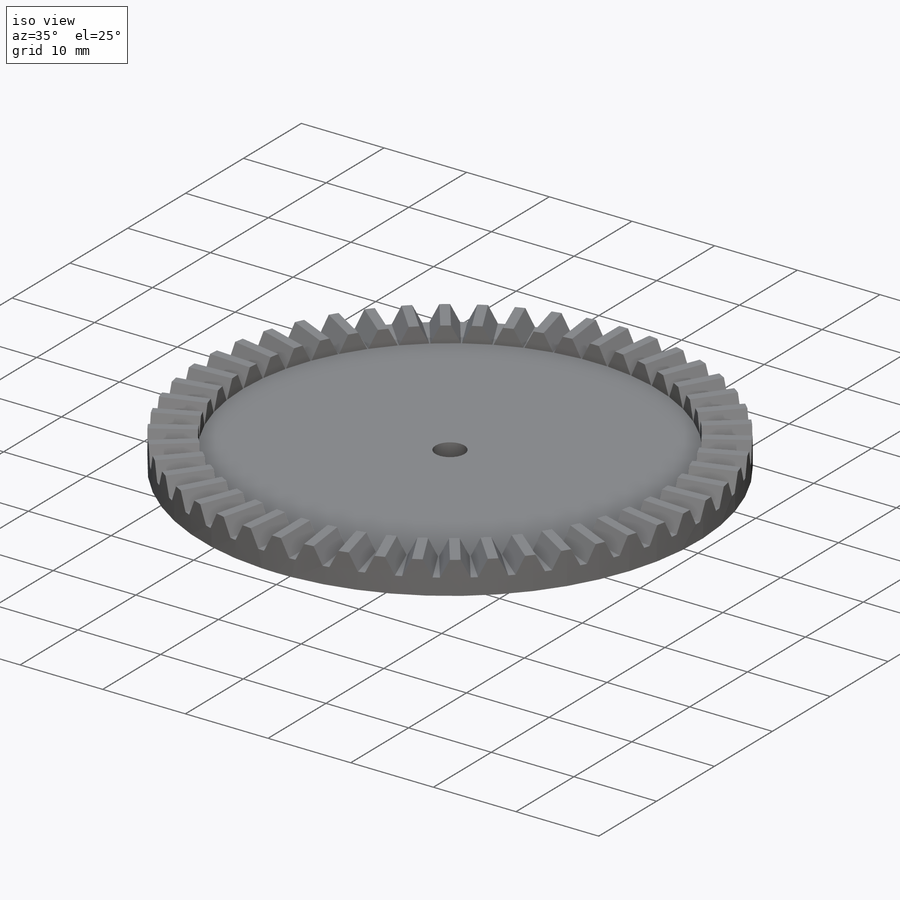
[diagram: iso view]
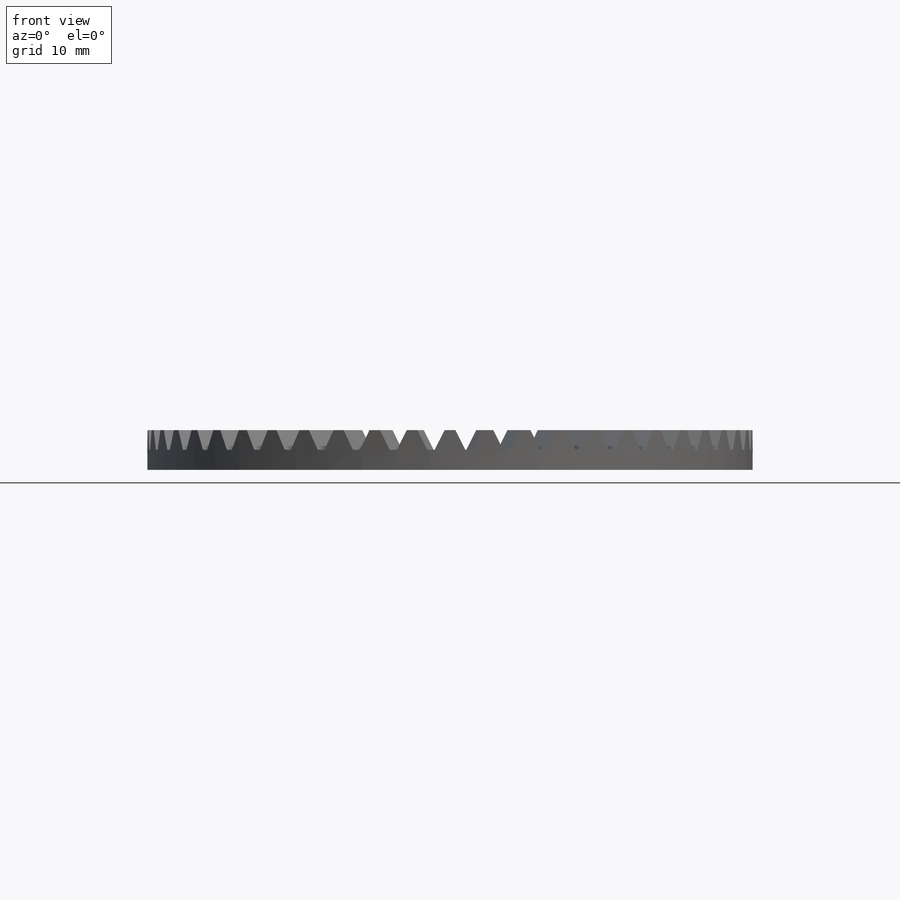
[diagram: front view]
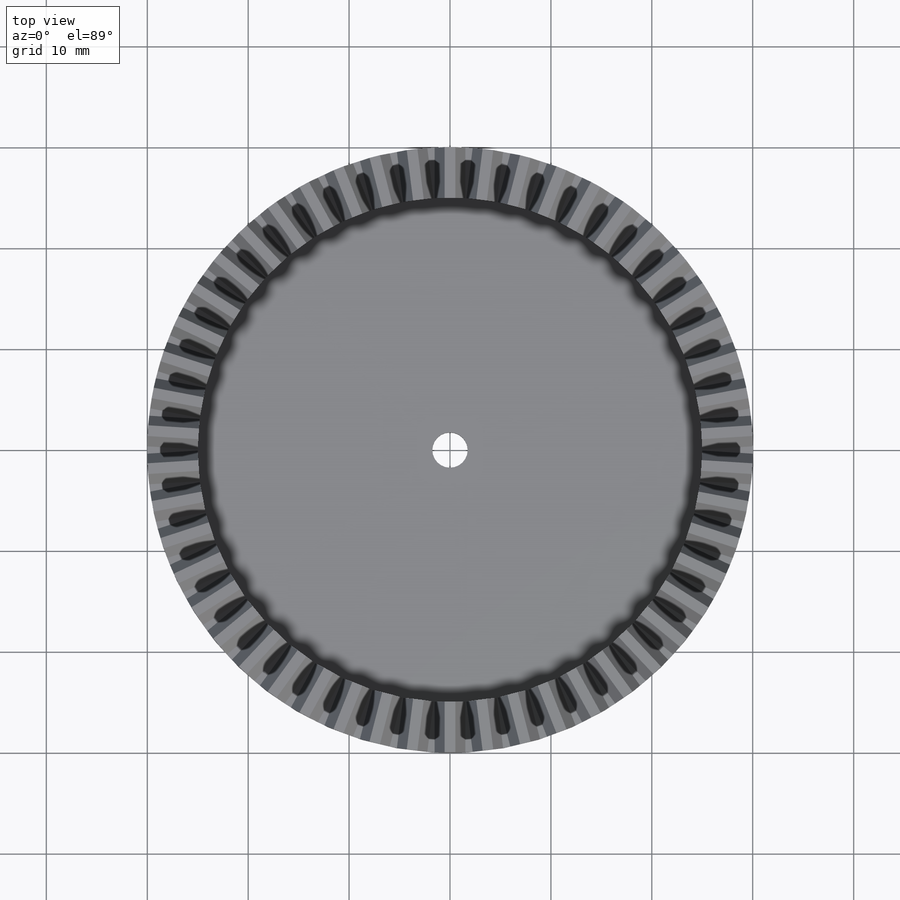
[diagram: top view]
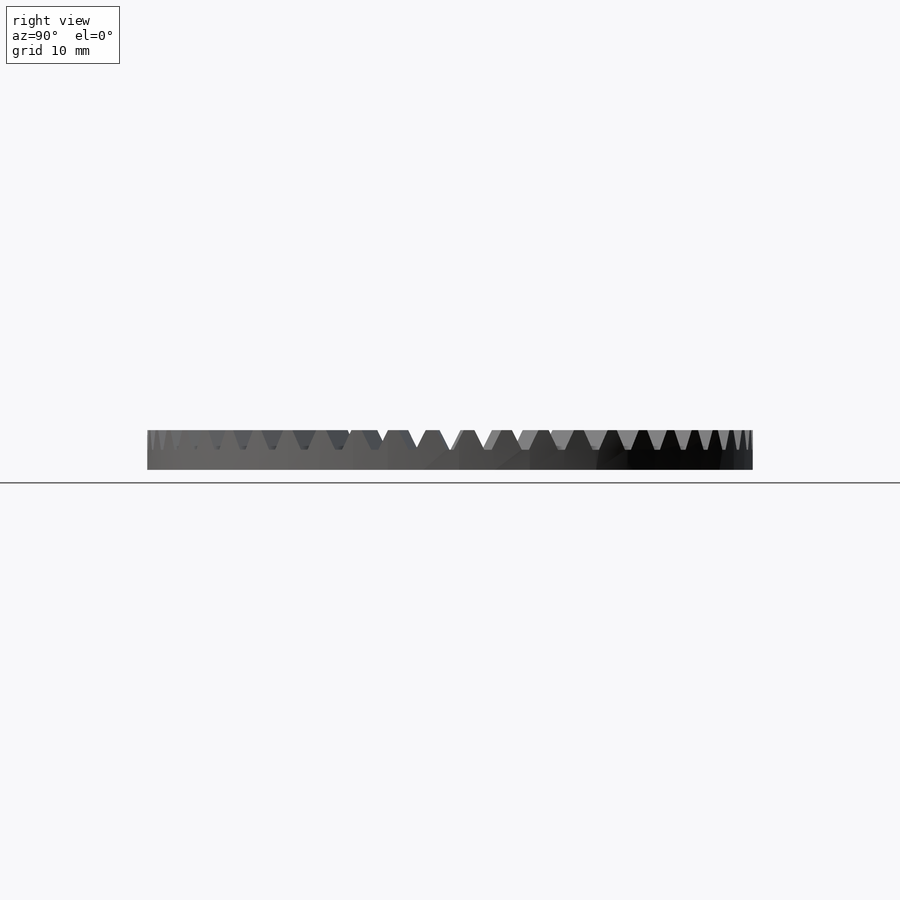
[diagram: right view]
SOLIDWORKS PART (.sldprt)
format: sldprt  version: not decoded by parser v0  size: 441,344 bytes
history: native  units: mm
features: sketch x5, extrude x2, cut_extrude x2, material x1, pattern_circular x1 (+13 scaffold rows collapsed)
feature tree (24):
  scaffold x13  (default folders/planes/origin — collapsed)
  material  "Material <not specified>"
  sketch  "Foot Measurements"  dims[D1=33.0mm D2=75.0mm D3=73.0mm D4=147.0mm D5=250.0mm]
  sketch  "Sketch3"  dims[D1=20.0mm]
  extrude  "Boss-Extrude3"  Depth=5mm
  sketch  "Sketch6"  dims[D1=4.0mm]
  cut_extrude  "Cut-Extrude1"  [1 undecoded]
  sketch  "Sketch5"  dims[c1.D2=30.0mm c1.D1=91.0deg c2.D1=5.0mm c3.D1=89.0deg c4.D1=30.0mm c5.D1=92.0deg c6.D1=5.0mm c6.D2=~24.984771mm c6.D3=~4.996954mm c7.D3=4.0deg c7.D4=~4.996954mm c8.D4=176.0deg c9.D4=~0.872487mm c9.D2=~24.984771mm c9.D1=30.0mm c10.D1=3.0deg c10.D2=~29.511573mm c11.D2=3.0deg c11.D1=~29.958886mm c12.D1=6.0deg c12.D3=~3.140157mm c12.D4=~4.977161mm c12.D2=5.0mm c13.D3=~3.140157mm]
  extrude  "Boss-Extrude5"  Depth=3mm
  sketch  "Sketch14"  dims[c1.D1=~1.99397mm c1.D2=1.05mm c2.D1=~3.040157mm c2.D2=1.05mm c3.D1=1.05mm c3.D2=0.05mm c3.D3=1.95mm c4.D3=~53.742018deg c4.D4=~1.038051mm]
  cut_extrude  "Cut-Extrude4"  [1 undecoded]
  pattern_circular  "CirPattern2"  Count=50 Angle=360deg
decode coverage: 8 of 10 modeling features carry decoded parameters
note: ~ marks probable driven/reference dimensions
note: 2 parameter values undecoded
note: suppression state not decoded; provenance and decode notes live in map.json
